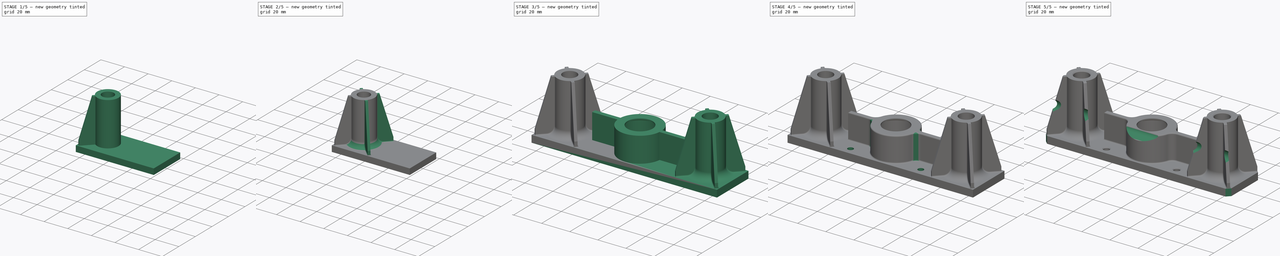
[diagram: build sequence overview — one tinted view per stage of 5, left to right]
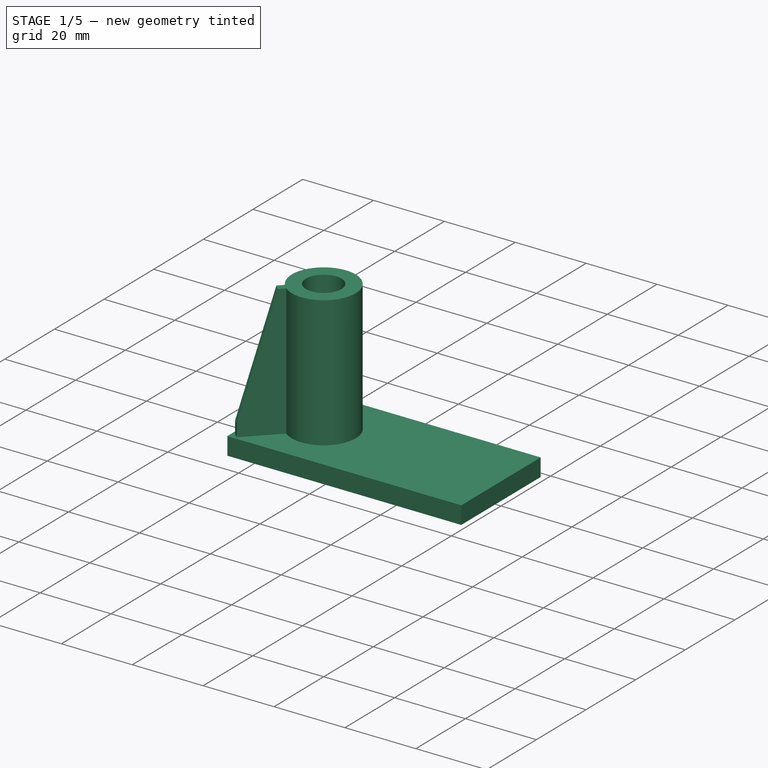
[diagram: stage 1 of 5 — iso view after this stage's code; geometry added in this stage tinted green]
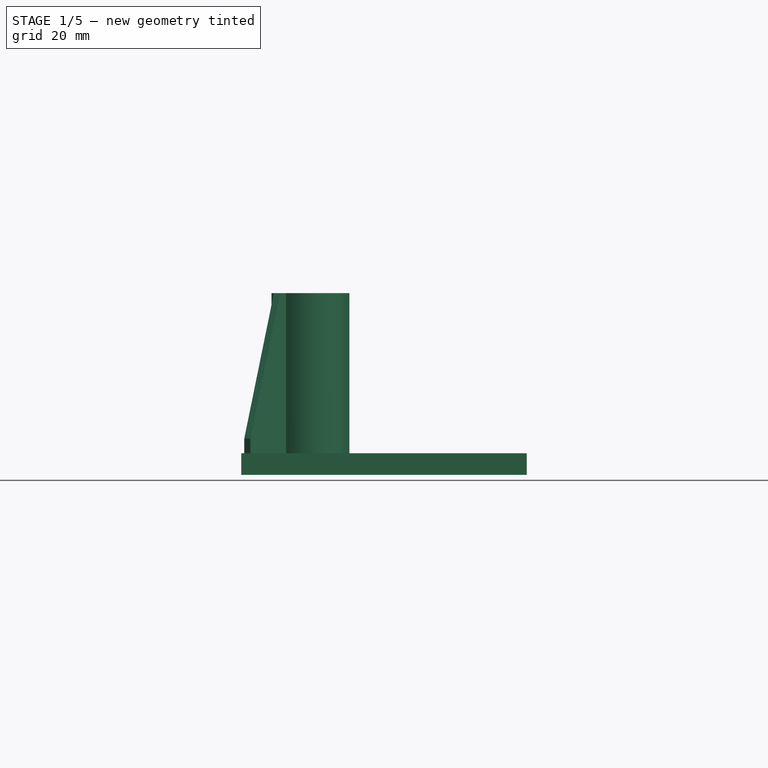
[diagram: stage 1 of 5 — front view after this stage's code; geometry added in this stage tinted green]
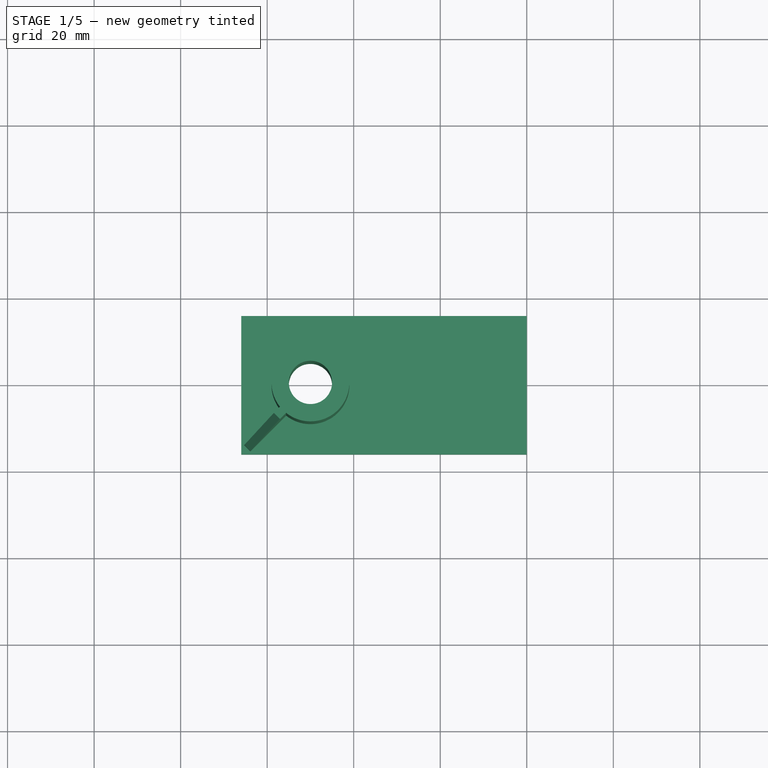
[diagram: stage 1 of 5 — top view after this stage's code; geometry added in this stage tinted green]
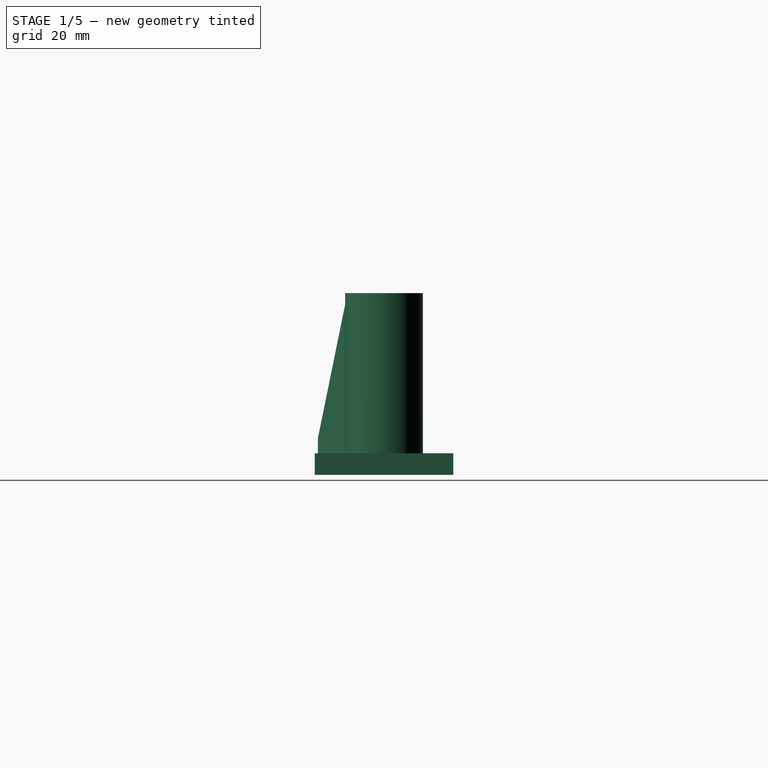
[diagram: stage 1 of 5 — right view after this stage's code; geometry added in this stage tinted green]
FCSTD DOCUMENT  (FreeCAD 0.21R33668 +26 (Git))
Label: FF_CreatorPro2_vertical-support
License: All rights reserved
LicenseURL: http://en.wikipedia.org/wiki/All_rights_reserved
objects: Sketcher::SketchObject×7, PartDesign::Pad×4, PartDesign::Fillet×4, PartDesign::Body×3, PartDesign::Hole×2, PartDesign::Chamfer×2, PartDesign::Line×1, PartDesign::PolarPattern×1, PartDesign::FeatureBase×1, PartDesign::Boolean×1, PartDesign::Pocket×1
note: 40 computed .brp shape members not serialized (recipe doc carries the construction recipe); baked Part::Feature solids carry a one-line shape summary decoded from their .brp

FEATURE [Sketcher::SketchObject] Sketch
  FullyConstrained = false
  MapMode = 5
  Support = -> [XY_Plane]
  sketch-geometry (5):
    g0: LineSegment StartX=-66 StartY=16 StartZ=0 EndX=0 EndY=16 EndZ=0
    g1: LineSegment StartX=0 StartY=-16 StartZ=0 EndX=-66 EndY=-16 EndZ=0
    g2: LineSegment StartX=-66 StartY=-16 StartZ=0 EndX=-66 EndY=16 EndZ=0
    g3: Circle CenterX=-50 CenterY=0 CenterZ=0 NormalX=0 NormalY=0 NormalZ=1 AngleXU=0 Radius=5
    g4: LineSegment StartX=0 StartY=16 StartZ=0 EndX=0 EndY=-16 EndZ=0
  constraints (13):
    c: Coincident(g1,g2)
    c: Coincident(g2,g0)
    c: Horizontal(g0)
    c: Horizontal(g1)
    c: Vertical(g2)
    c: PointOnObject(g3,g-1)
    c: Coincident(g4,g0)
    c: Coincident(g4,g1)
    c: Vertical(g4)
    c: Symmetric(g0,g1,g-1)
    c: Distance(g3,g0) = 16
    c: Distance(g3,g2) = 16
    c: Distance(g3,g4) = 50
FEATURE [PartDesign::Pad] Pad
  Direction = (0,0,1)
  Length = 5
  Length2 = 10
  Profile = -> Sketch
  ReferenceAxis = -> Sketch [N_Axis]
  Reversed = true
  Type = 0
FEATURE [Sketcher::SketchObject] Sketch001
  ExternalGeometry = -> [Pad]
  FullyConstrained = true
  MapMode = 5
  Support = -> [Pad]
  sketch-geometry (2):
    g0: Circle CenterX=-50 CenterY=0 CenterZ=0 NormalX=0 NormalY=0 NormalZ=1 AngleXU=0 Radius=9
    g1: Circle CenterX=-50 CenterY=0 CenterZ=0 NormalX=0 NormalY=0 NormalZ=1 AngleXU=0 Radius=5
  constraints (4):
    c: Coincident(g0,g-3)
    c: Diameter(g0) = 18
    c: Coincident(g1,g0)
    c: Equal(g-3,g1)
FEATURE [PartDesign::Pad] Pad001
  BaseFeature = -> Pad
  Direction = (0,0,1)
  Length = 37
  Length2 = 10
  Profile = -> Sketch001
  ReferenceAxis = -> Sketch001 [N_Axis]
  Type = 0
FEATURE [PartDesign::Line] DatumLine
  AttacherType = Attacher::AttachEngineLine
  Length = 20
  MapMode = 19
  Placement = pos=(-50,0,0) rot=(0,0,1;0rad)
  ResizeMode = 0
  Support = -> [Sketch]
FEATURE [Sketcher::SketchObject] Sketch002
  AttachmentOffset = pos=(0,0,-50) rot=(0,1,0;0.785398rad)
  ExternalGeometry = -> [DatumLine,Sketch]
  FullyConstrained = false
  MapMode = 5
  Placement = pos=(0,50,1.11e-14) rot=(0.862856,0.357407,0.357407;1.71777rad)
  Support = -> [XZ_Plane,DatumLine]
  sketch-geometry (5):
    g0: LineSegment StartX=-81.6566 StartY=37 StartZ=0 EndX=-76.7107 EndY=37 EndZ=0
    g1: LineSegment StartX=-81.6566 StartY=37 StartZ=0 EndX=-91.3381 EndY=3.41296 EndZ=0
    g2: LineSegment StartX=-91.3381 StartY=3.41296 StartZ=0 EndX=-91.3381 EndY=0 EndZ=0
    g3: LineSegment StartX=-91.3381 StartY=0 StartZ=0 EndX=-76.7107 EndY=0 EndZ=0
    g4: LineSegment StartX=-76.7107 StartY=37 StartZ=0 EndX=-76.7107 EndY=0 EndZ=0
  constraints (13):
    c: Horizontal(g0)
    c: Coincident(g1,g0)
    c: Coincident(g2,g1)
    c: PointOnObject(g2,g-1)
    c: Vertical(g2)
    c: Coincident(g3,g2)
    c: PointOnObject(g3,g-1)
    c: Coincident(g4,g0)
    c: Coincident(g4,g3)
    c: Vertical(g4)
    c: Distance(g0,g-3) = 6
    c: Distance(g4) = 37
    c: Distance(g2,g-4) = 2
FEATURE [PartDesign::Pad] Pad002
  BaseFeature = -> Pad001
  Direction = (0.707107,-0.707107,1e-16)
  Length = 2
  Length2 = 10
  Midplane = true
  Profile = -> Sketch002
  ReferenceAxis = -> Sketch002 [N_Axis]
  Type = 0
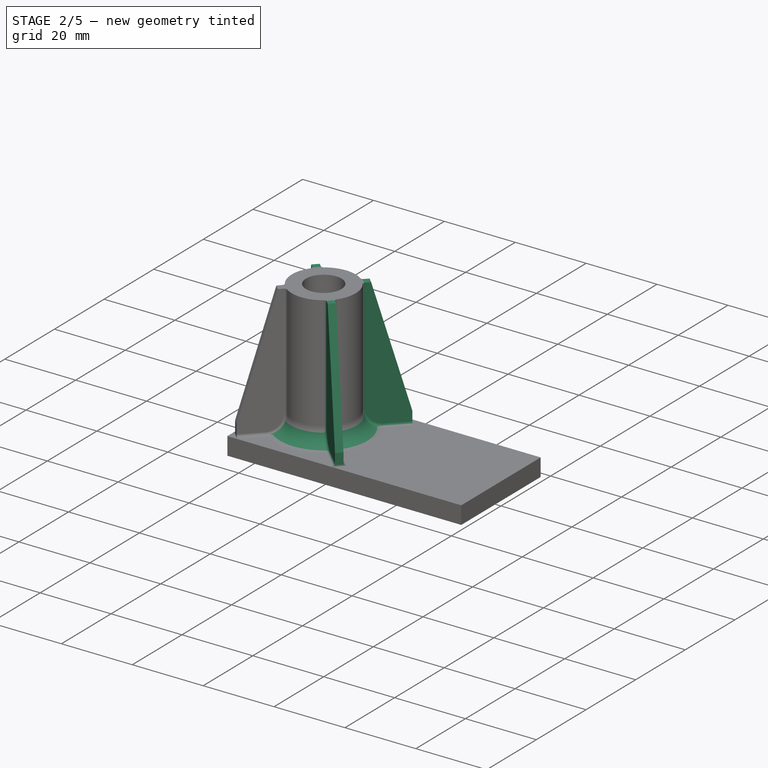
[diagram: stage 2 of 5 — iso view after this stage's code; geometry added in this stage tinted green]
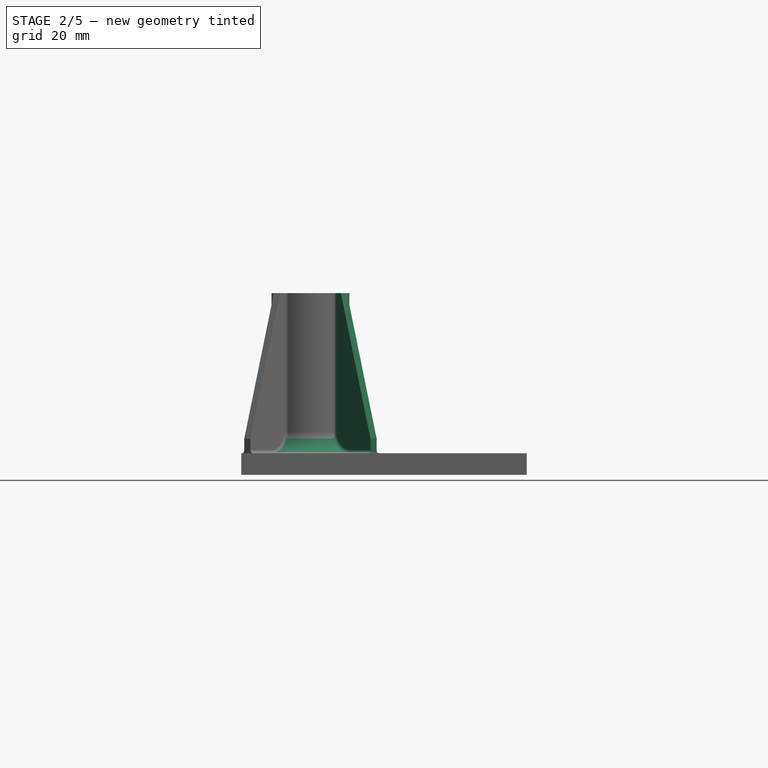
[diagram: stage 2 of 5 — front view after this stage's code; geometry added in this stage tinted green]
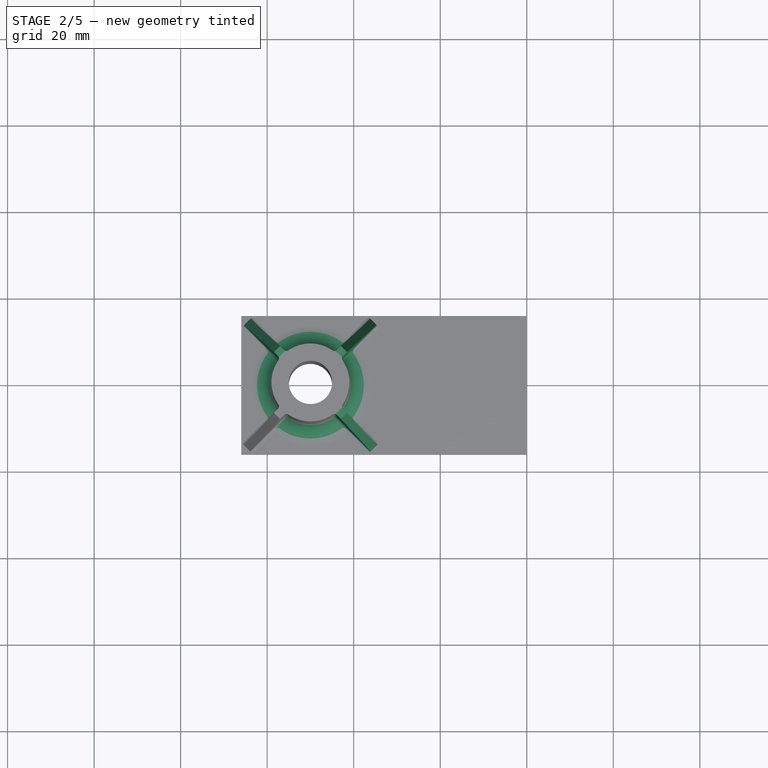
[diagram: stage 2 of 5 — top view after this stage's code; geometry added in this stage tinted green]
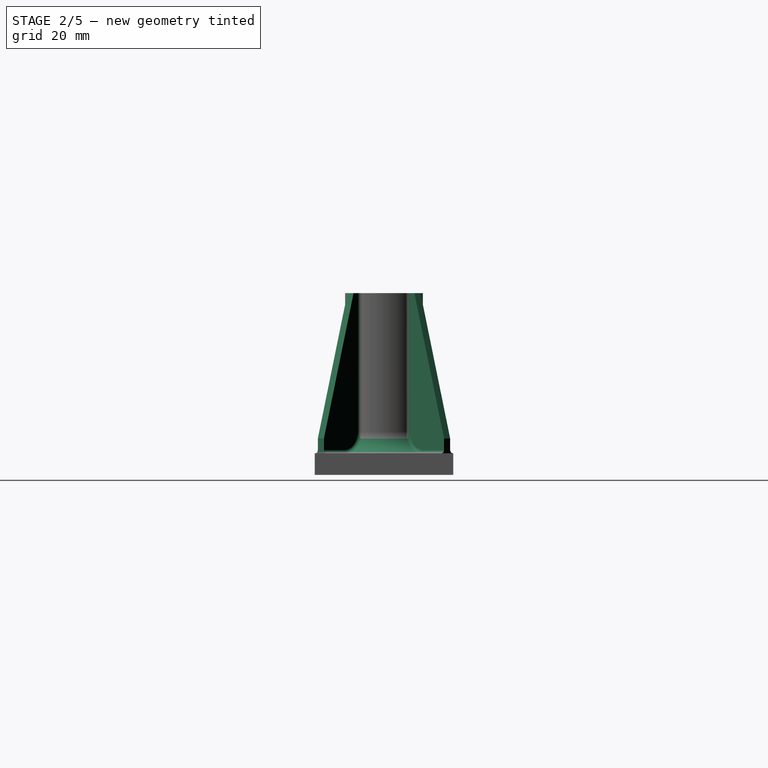
[diagram: stage 2 of 5 — right view after this stage's code; geometry added in this stage tinted green]
FEATURE [PartDesign::PolarPattern] PolarPattern
  Angle = 360
  Axis = -> DatumLine
  BaseFeature = -> Pad002
  Occurrences = 4
  Originals = -> [Pad002]
FEATURE [PartDesign::Fillet] Fillet
  Base = -> PolarPattern [Edge28,Edge12,Edge16,Edge20,Edge24]
  BaseFeature = -> PolarPattern
  Radius = 5
  SupportTransform = false
  UseAllEdges = false
FEATURE [PartDesign::Fillet] Fillet001
  Base = -> Fillet [Edge66,Edge58,Edge42,Edge34,Edge23,Edge31,Edge55,Edge50]
  BaseFeature = -> Fillet
  Radius = 0.8
  Refine = true
  SupportTransform = false
  UseAllEdges = false
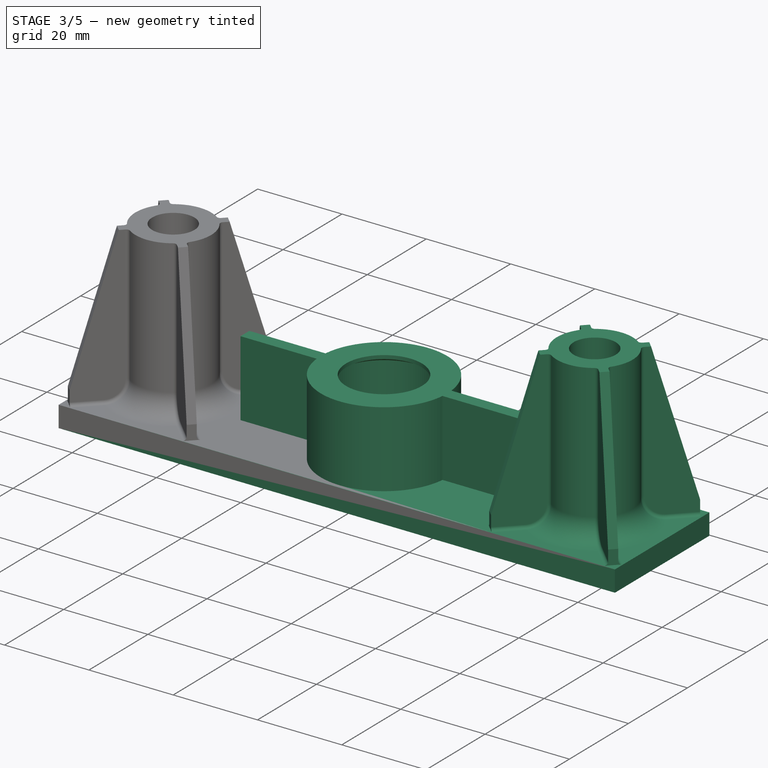
[diagram: stage 3 of 5 — iso view after this stage's code; geometry added in this stage tinted green]
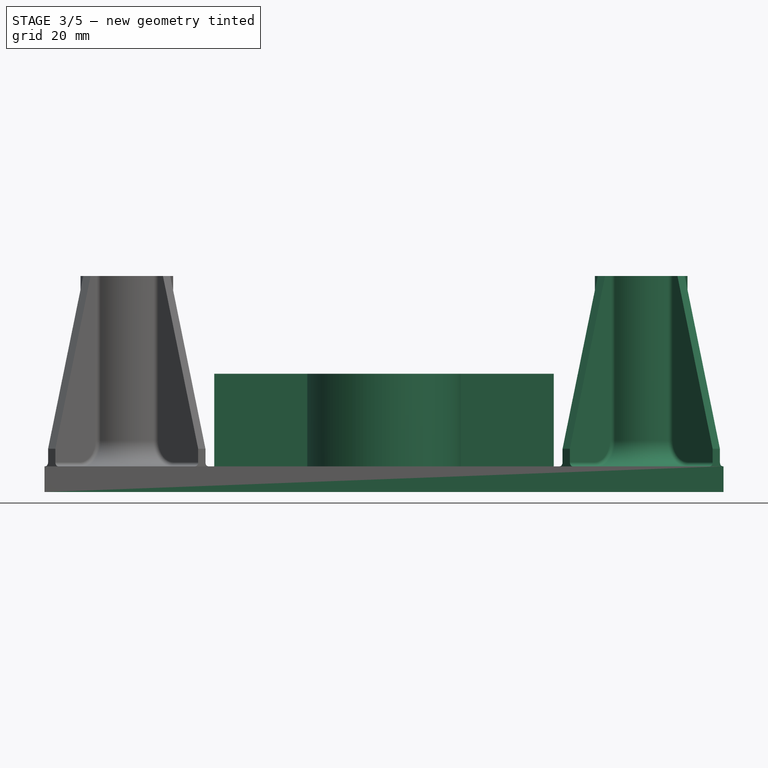
[diagram: stage 3 of 5 — front view after this stage's code; geometry added in this stage tinted green]
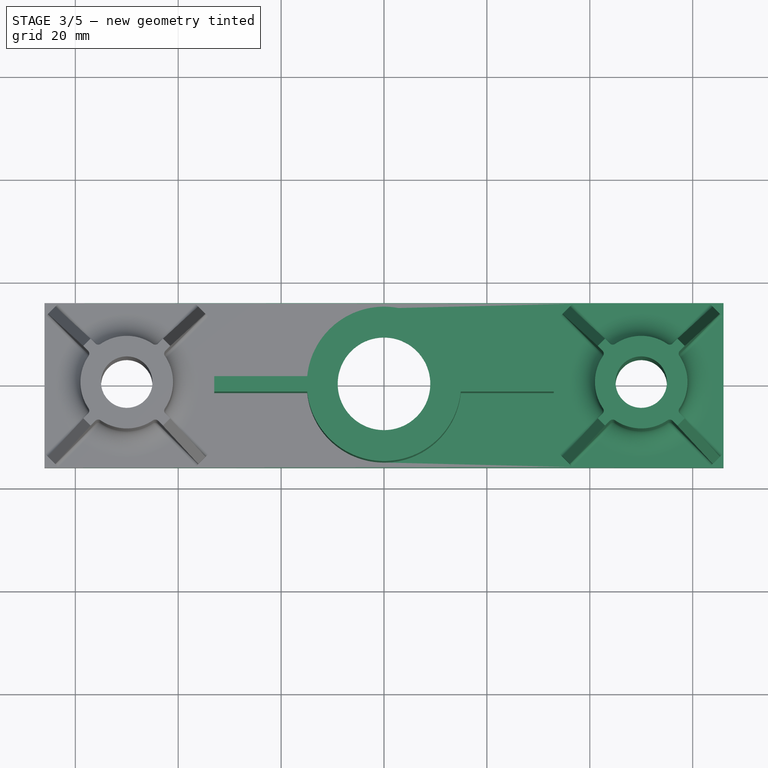
[diagram: stage 3 of 5 — top view after this stage's code; geometry added in this stage tinted green]
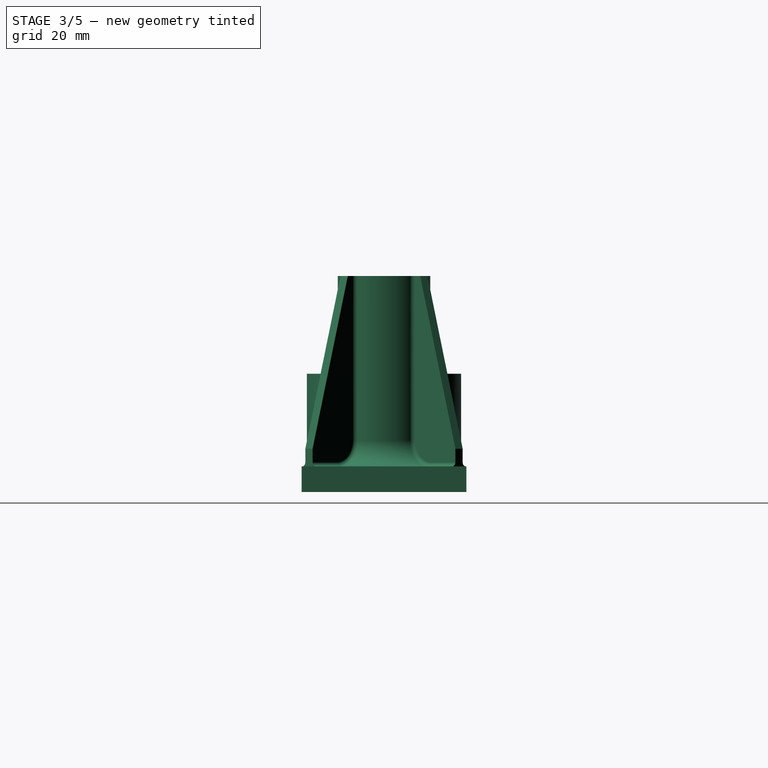
[diagram: stage 3 of 5 — right view after this stage's code; geometry added in this stage tinted green]
FEATURE [PartDesign::Body] Body
  Group = -> [Sketch,Pad,Sketch001,Pad001,DatumLine,Sketch002,Pad002,PolarPattern,Fillet,Fillet001]
  Origin = -> Origin
  Tip = -> Fillet001
FEATURE [PartDesign::FeatureBase] Clone
  BaseFeature = -> Body
FEATURE [PartDesign::Body] Body001
  Group = -> [Clone]
  Origin = -> Origin001
  Placement = pos=(0,0,0) rot=(0,0,1;3.14159rad)
  Tip = -> Clone
FEATURE [PartDesign::Boolean] Boolean
  Group = -> [Body001,Body]
  Refine = true
  Type = 0
FEATURE [Sketcher::SketchObject] Sketch003
  FullyConstrained = true
  MapMode = 5
  Support = -> [XY_Plane002]
  sketch-geometry (10):
    g0: LineSegment StartX=-14.9248 StartY=1.5 StartZ=0 EndX=-33 EndY=1.5 EndZ=0
    g1: LineSegment StartX=-33 StartY=1.5 StartZ=0 EndX=-33 EndY=-1.5 EndZ=0
    g2: LineSegment StartX=-33 StartY=-1.5 StartZ=0 EndX=-14.9248 EndY=-1.5 EndZ=0
    g3: GeomPoint X=-23.9624 Y=0 Z=0
    g4: LineSegment StartX=33 StartY=-1.5 StartZ=0 EndX=33 EndY=1.5 EndZ=0
    g5: LineSegment StartX=33 StartY=1.5 StartZ=0 EndX=14.9248 EndY=1.5 EndZ=0
    g6: LineSegment StartX=14.9248 StartY=-1.5 StartZ=0 EndX=33 EndY=-1.5 EndZ=0
    g7: GeomPoint X=23.9624 Y=0 Z=0
    g8: ArcOfCircle CenterX=0 CenterY=0 CenterZ=0 NormalX=0 NormalY=0 NormalZ=1 AngleXU=0 Radius=15 StartAngle=0.100167 EndAngle=3.04143
    g9: ArcOfCircle CenterX=0 CenterY=0 CenterZ=0 NormalX=0 NormalY=0 NormalZ=1 AngleXU=0 Radius=15 StartAngle=3.24176 EndAngle=6.18302
  constraints (25):
    c: Coincident(g0,g1)
    c: Coincident(g1,g2)
    c: Horizontal(g0)
    c: Horizontal(g2)
    c: Vertical(g1)
    c: Symmetric(g0,g2,g3)
    c: PointOnObject(g3,g-1)
    c: Coincident(g4,g5)
    c: Coincident(g6,g4)
    c: Horizontal(g5)
    c: Horizontal(g6)
    c: Vertical(g4)
    c: Symmetric(g5,g4,g7)
    c: PointOnObject(g7,g-1)
    c: Coincident(g8,g-1)
    c: Coincident(g8,g0)
    c: Coincident(g8,g5)
    c: Coincident(g9,g8)
    c: Coincident(g9,g2)
    c: Coincident(g9,g6)
    c: Equal(g9,g8)
    c: Diameter(g8) = 30
    c: Symmetric(g1,g4,g-2)
    c: Distance(g1,g-2) = 33
    c: Distance(g1) = 3
FEATURE [PartDesign::Pad] Pad003
  BaseFeature = -> Boolean
  Direction = (0,0,1)
  Length = 18
  Length2 = 10
  Profile = -> Sketch003
  ReferenceAxis = -> Sketch003 [N_Axis]
  Type = 0
FEATURE [Sketcher::SketchObject] Sketch004
  AttachmentOffset = pos=(0,0,-5) rot=(1,0,0;3.14159rad)
  FullyConstrained = false
  MapMode = 5
  Placement = pos=(0,0,-5) rot=(1,0,0;3.14159rad)
  Support = -> [XY_Plane002]
  sketch-geometry (1):
    g0: Circle CenterX=0 CenterY=0 CenterZ=0 NormalX=0 NormalY=0 NormalZ=1 AngleXU=0 Radius=8.97303
  constraints (1):
    c: Coincident(g0,g-1)
FEATURE [PartDesign::Hole] Hole
  BaseFeature = -> Pad003
  CustomThreadClearance = 0
  Depth = 282.54
  DepthType = 1
  Diameter = 18
  DrillForDepth = false
  DrillPoint = 1
  DrillPointAngle = 120
  HoleCutCountersinkAngle = 120
  HoleCutCustomValues = false
  HoleCutDepth = 21
  HoleCutDiameter = 22
  HoleCutType = 3
  ModelThread = false
  Profile = -> Sketch004
  Tapered = false
  TaperedAngle = 90
  ThreadClass = 0
  ThreadDepth = 282.54
  ThreadDepthType = 0
  ThreadDirection = 0
  ThreadFit = 0
  ThreadSize = 0
  ThreadType = 0
  Threaded = false
  UseCustomThreadClearance = false
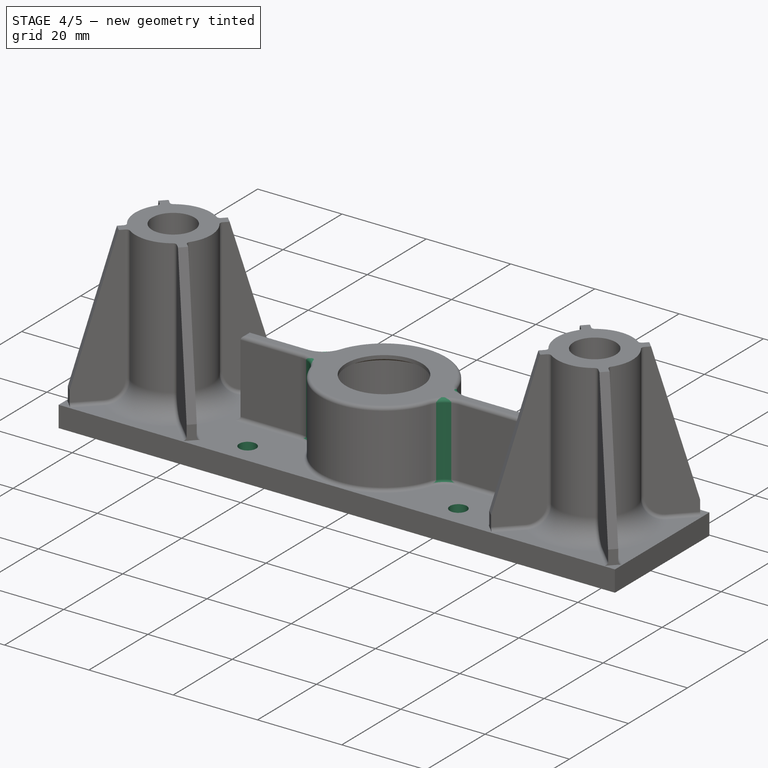
[diagram: stage 4 of 5 — iso view after this stage's code; geometry added in this stage tinted green]
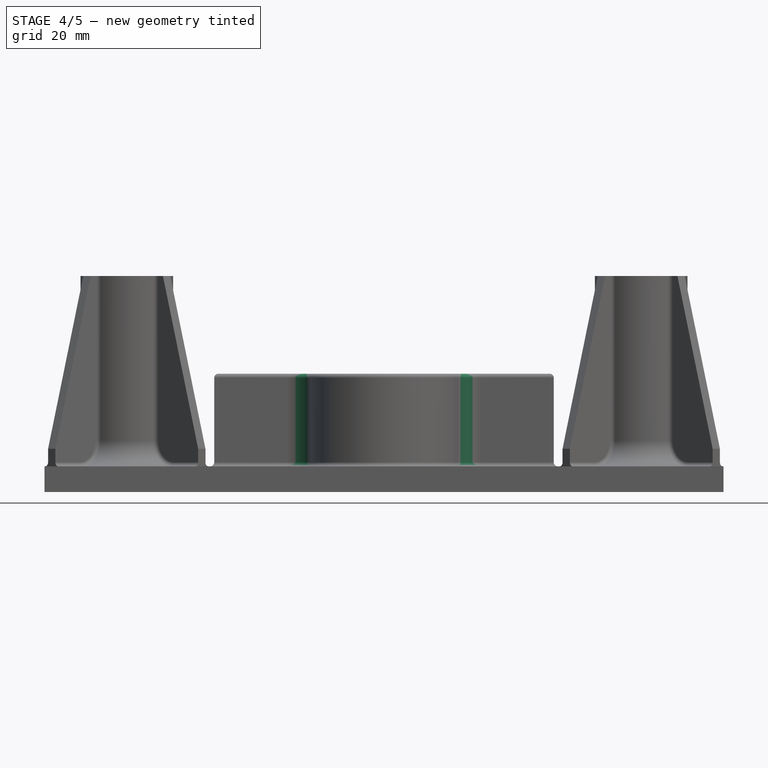
[diagram: stage 4 of 5 — front view after this stage's code; geometry added in this stage tinted green]
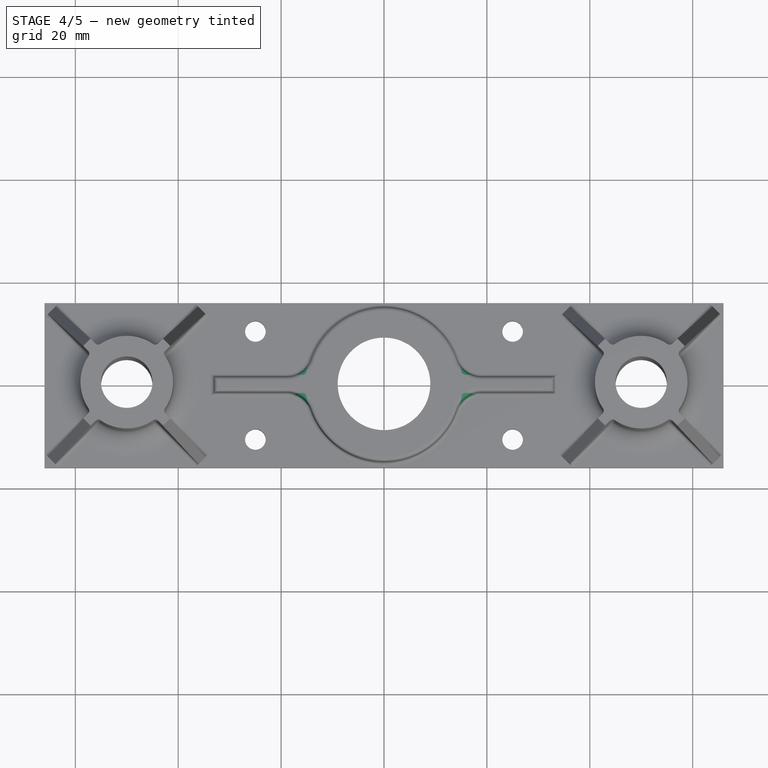
[diagram: stage 4 of 5 — top view after this stage's code; geometry added in this stage tinted green]
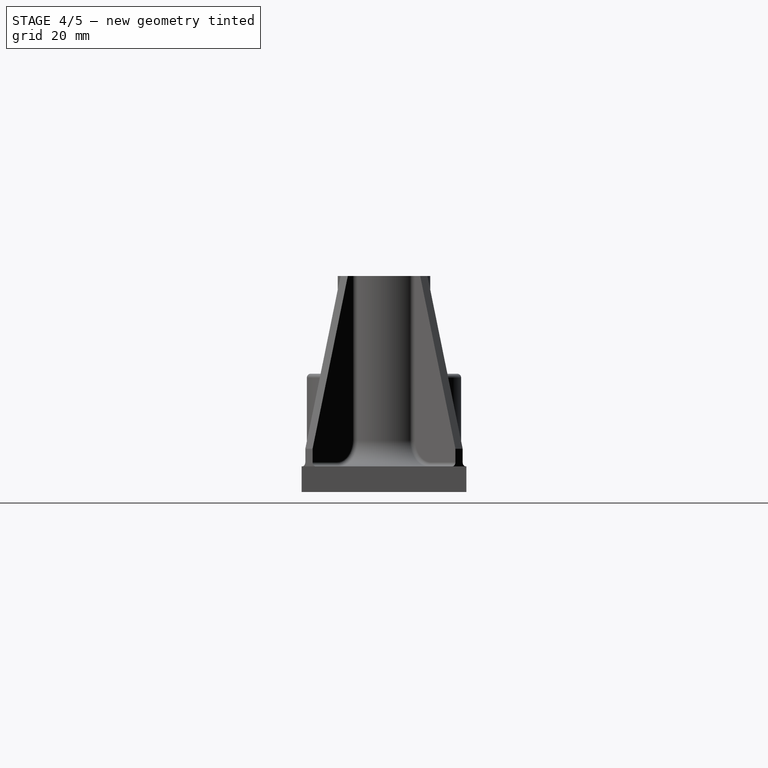
[diagram: stage 4 of 5 — right view after this stage's code; geometry added in this stage tinted green]
FEATURE [PartDesign::Fillet] Fillet002
  Base = -> Hole [Edge171,Edge158,Edge163,Edge165]
  BaseFeature = -> Hole
  Radius = 5
  SupportTransform = false
  UseAllEdges = false
FEATURE [PartDesign::Fillet] Fillet003
  Base = -> Fillet002 [Edge1,Edge2,Edge4,Edge57,Edge3,Edge10,Edge8,Edge6,Edge12,Edge11,Edge9,Edge5,Edge71,Edge7,Edge59,Edge69]
  BaseFeature = -> Fillet002
  Radius = 0.8
  SupportTransform = false
  UseAllEdges = false
FEATURE [Sketcher::SketchObject] Sketch005
  AttachmentOffset = pos=(0,0,-5) rot=(1,0,0;3.14159rad)
  FullyConstrained = true
  MapMode = 5
  Placement = pos=(0,0,-5) rot=(1,0,0;3.14159rad)
  Support = -> [XY_Plane002]
  sketch-geometry (9):
    g0: LineSegment StartX=-25 StartY=-10.5 StartZ=0 EndX=-25 EndY=10.5 EndZ=0
    g1: LineSegment StartX=-25 StartY=10.5 StartZ=0 EndX=25 EndY=10.5 EndZ=0
    g2: LineSegment StartX=25 StartY=10.5 StartZ=0 EndX=25 EndY=-10.5 EndZ=0
    g3: LineSegment StartX=25 StartY=-10.5 StartZ=0 EndX=-25 EndY=-10.5 EndZ=0
    g4: GeomPoint X=0 Y=0 Z=0
    g5: Circle CenterX=-25 CenterY=10.5 CenterZ=0 NormalX=0 NormalY=0 NormalZ=1 AngleXU=0 Radius=2
    g6: Circle CenterX=-25 CenterY=-10.5 CenterZ=0 NormalX=0 NormalY=0 NormalZ=1 AngleXU=0 Radius=2
    g7: Circle CenterX=25 CenterY=10.5 CenterZ=0 NormalX=0 NormalY=0 NormalZ=1 AngleXU=0 Radius=2
    g8: Circle CenterX=25 CenterY=-10.5 CenterZ=0 NormalX=0 NormalY=0 NormalZ=1 AngleXU=0 Radius=2
  constraints (20):
    c: Coincident(g0,g1)
    c: Coincident(g1,g2)
    c: Coincident(g2,g3)
    c: Coincident(g3,g0)
    c: Horizontal(g1)
    c: Horizontal(g3)
    c: Vertical(g0)
    c: Vertical(g2)
    c: Symmetric(g1,g0,g4)
    c: Coincident(g4,g-1)
    c: Coincident(g5,g0)
    c: Coincident(g6,g0)
    c: Coincident(g7,g1)
    c: Coincident(g8,g2)
    c: Equal(g5,g6)
    c: Equal(g7,g8)
    c: Equal(g7,g5)
    c: Diameter(g5) = 4
    c: DistanceX(g1,g1) = 50
    c: DistanceY(g0,g0) = 21
FEATURE [PartDesign::Hole] Hole001
  BaseFeature = -> Fillet003
  CustomThreadClearance = 0
  Depth = 25
  DepthType = 0
  Diameter = 4
  DrillForDepth = false
  DrillPoint = 1
  DrillPointAngle = 118
  HoleCutCountersinkAngle = 90
  HoleCutCustomValues = false
  HoleCutDepth = 0
  HoleCutDiameter = 5
  HoleCutType = 2
  ModelThread = false
  Profile = -> Sketch005
  Tapered = false
  TaperedAngle = 90
  ThreadClass = 0
  ThreadDepth = 25
  ThreadDepthType = 0
  ThreadDirection = 0
  ThreadFit = 0
  ThreadSize = 0
  ThreadType = 0
  Threaded = false
  UseCustomThreadClearance = false
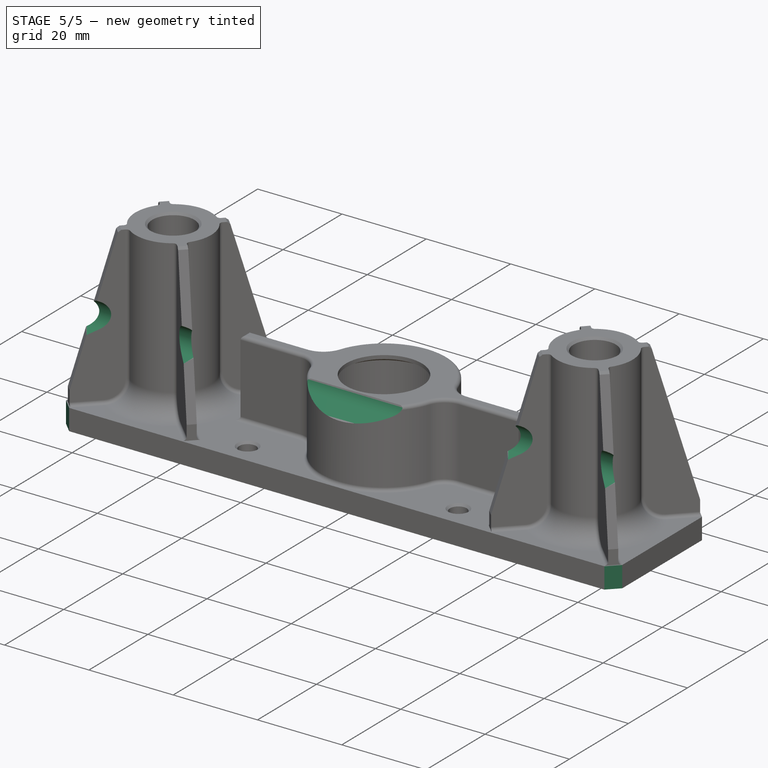
[diagram: stage 5 of 5 — iso view after this stage's code; geometry added in this stage tinted green]
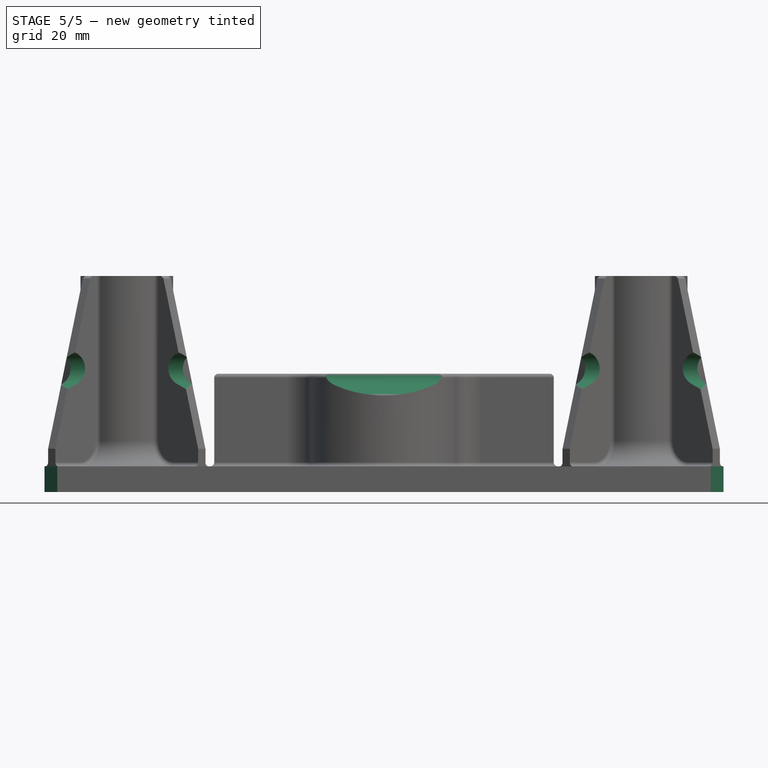
[diagram: stage 5 of 5 — front view after this stage's code; geometry added in this stage tinted green]
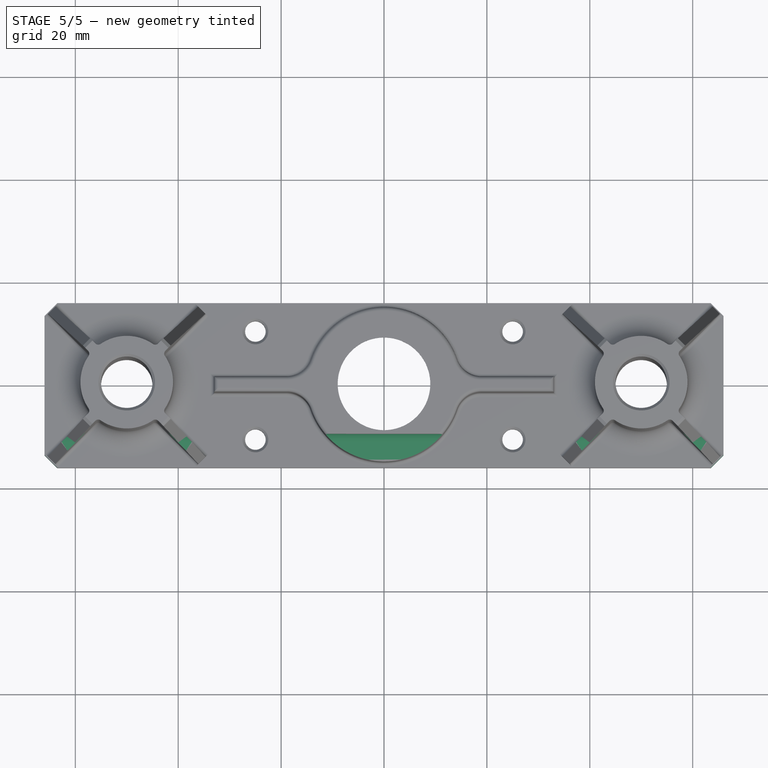
[diagram: stage 5 of 5 — top view after this stage's code; geometry added in this stage tinted green]
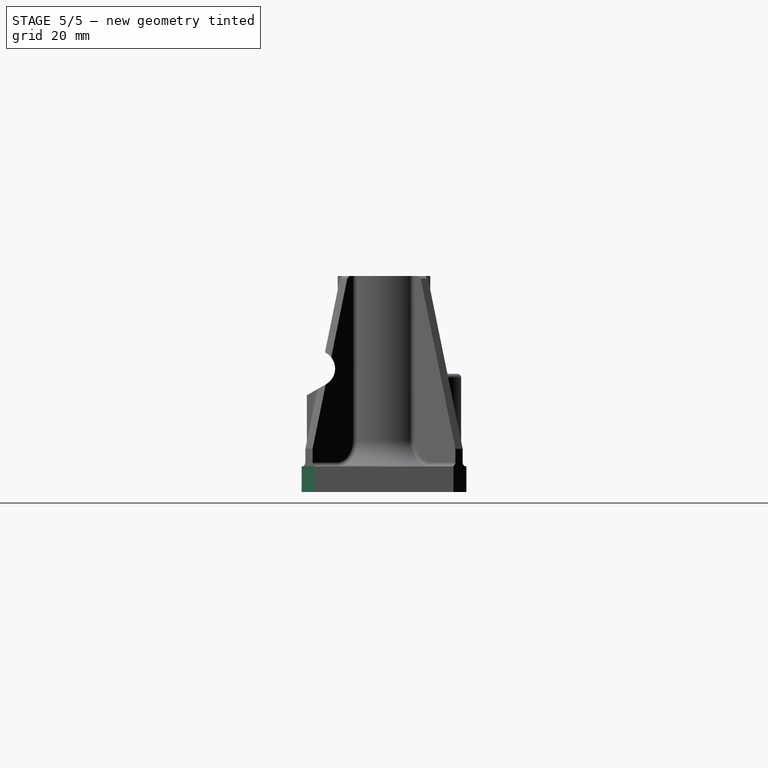
[diagram: stage 5 of 5 — right view after this stage's code; geometry added in this stage tinted green]
FEATURE [PartDesign::Chamfer] Chamfer
  Angle = 45
  Base = -> Hole001 [Edge55,Edge56,Edge60,Edge59]
  BaseFeature = -> Hole001
  ChamferType = 0
  FlipDirection = false
  Size = 2.5
  Size2 = 1
  SupportTransform = false
  UseAllEdges = false
FEATURE [PartDesign::Chamfer] Chamfer001
  Angle = 45
  Base = -> Chamfer [Edge212,Edge211,Edge208,Edge360,Edge45,Edge58,Edge10,Edge9,Edge356,Edge312,Edge284,Edge297,Edge325,Edge240,Edge268,Edge255,Edge227]
  BaseFeature = -> Chamfer
  ChamferType = 0
  FlipDirection = false
  Size = 0.5
  Size2 = 1
  SupportTransform = false
  UseAllEdges = false
FEATURE [Sketcher::SketchObject] Sketch006
  FullyConstrained = false
  MapMode = 5
  Placement = pos=(0,0,0) rot=(0.57735,0.57735,0.57735;2.0944rad)
  Support = -> [YZ_Plane002]
  sketch-geometry (7):
    g0: LineSegment StartX=-23.5923 StartY=-5 StartZ=0 EndX=13.8059 EndY=-5 EndZ=0
    g1: GeomPoint X=-13 Y=19 Z=0
    g2: ArcOfCircle CenterX=-13 CenterY=19 CenterZ=0 NormalX=0 NormalY=0 NormalZ=1 AngleXU=0 Radius=3.5 StartAngle=5.23599 EndAngle=7.33038
    g3: LineSegment StartX=-11.25 StartY=15.9689 StartZ=0 EndX=-24.713 EndY=8.19606 EndZ=0
    g4: LineSegment StartX=-11.25 StartY=22.0311 StartZ=0 EndX=-24.713 EndY=29.8039 EndZ=0
    g5: LineSegment StartX=-24.713 StartY=8.19606 StartZ=0 EndX=-24.713 EndY=29.8039 EndZ=0
    g6: LineSegment StartX=-11.25 StartY=22.0311 StartZ=0 EndX=-11.25 EndY=15.9689 EndZ=0
  constraints (15):
    c: Horizontal(g0)
    c: Distance(g0,g-1) = 5
    c: Coincident(g2,g1)
    c: Coincident(g5,g3)
    c: Coincident(g5,g4)
    c: Vertical(g5)
    c: Tangent(g3,g2) = 1.5708
    c: Tangent(g4,g2) = -1.5708
    c: DistanceX(g-2,g2) = -13
    c: Coincident(g6,g2)
    c: Coincident(g6,g2)
    c: Vertical(g6)
    c: Angle(g4,g3) = 1.0472
    c: Radius(g2) = 3.5
    c: Distance(g2,g0) = 24
FEATURE [PartDesign::Pocket] Pocket
  BaseFeature = -> Chamfer001
  Direction = (-1,2e-16,-3e-16)
  Length = 150
  Length2 = 5
  Midplane = true
  Profile = -> Sketch006
  ReferenceAxis = -> Sketch006 [N_Axis]
  Type = 0
FEATURE [PartDesign::Body] Body002
  Group = -> [Boolean,Sketch003,Pad003,Sketch004,Hole,Fillet002,Fillet003,Sketch005,Hole001,Chamfer,Chamfer001,Sketch006,Pocket]
  Origin = -> Origin002
  Tip = -> Pocket
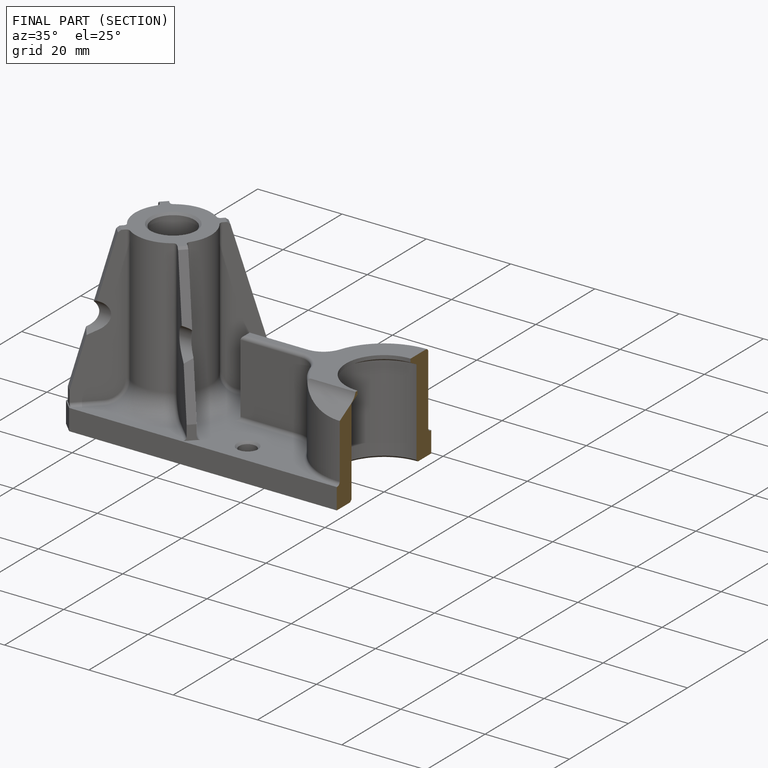
[diagram: finished part — half-section view (interior)]
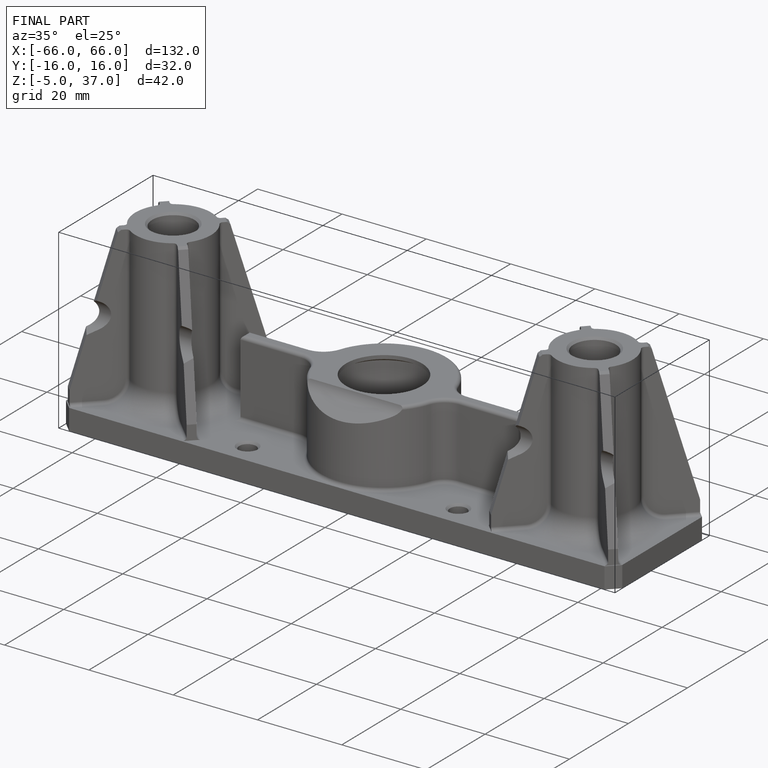
[diagram: finished part — iso view with bounding-box wireframe]
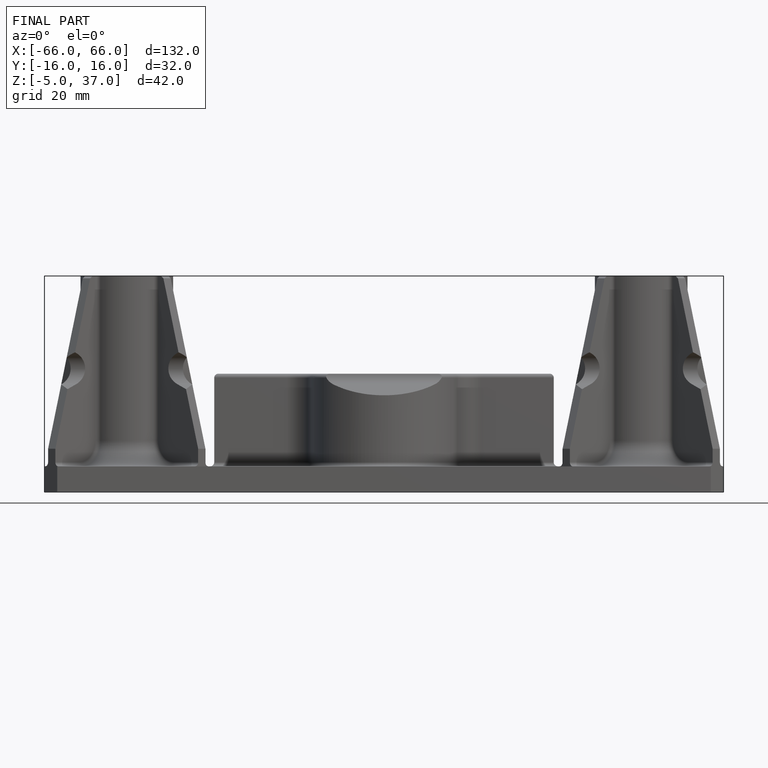
[diagram: finished part — front view with bounding-box wireframe]
